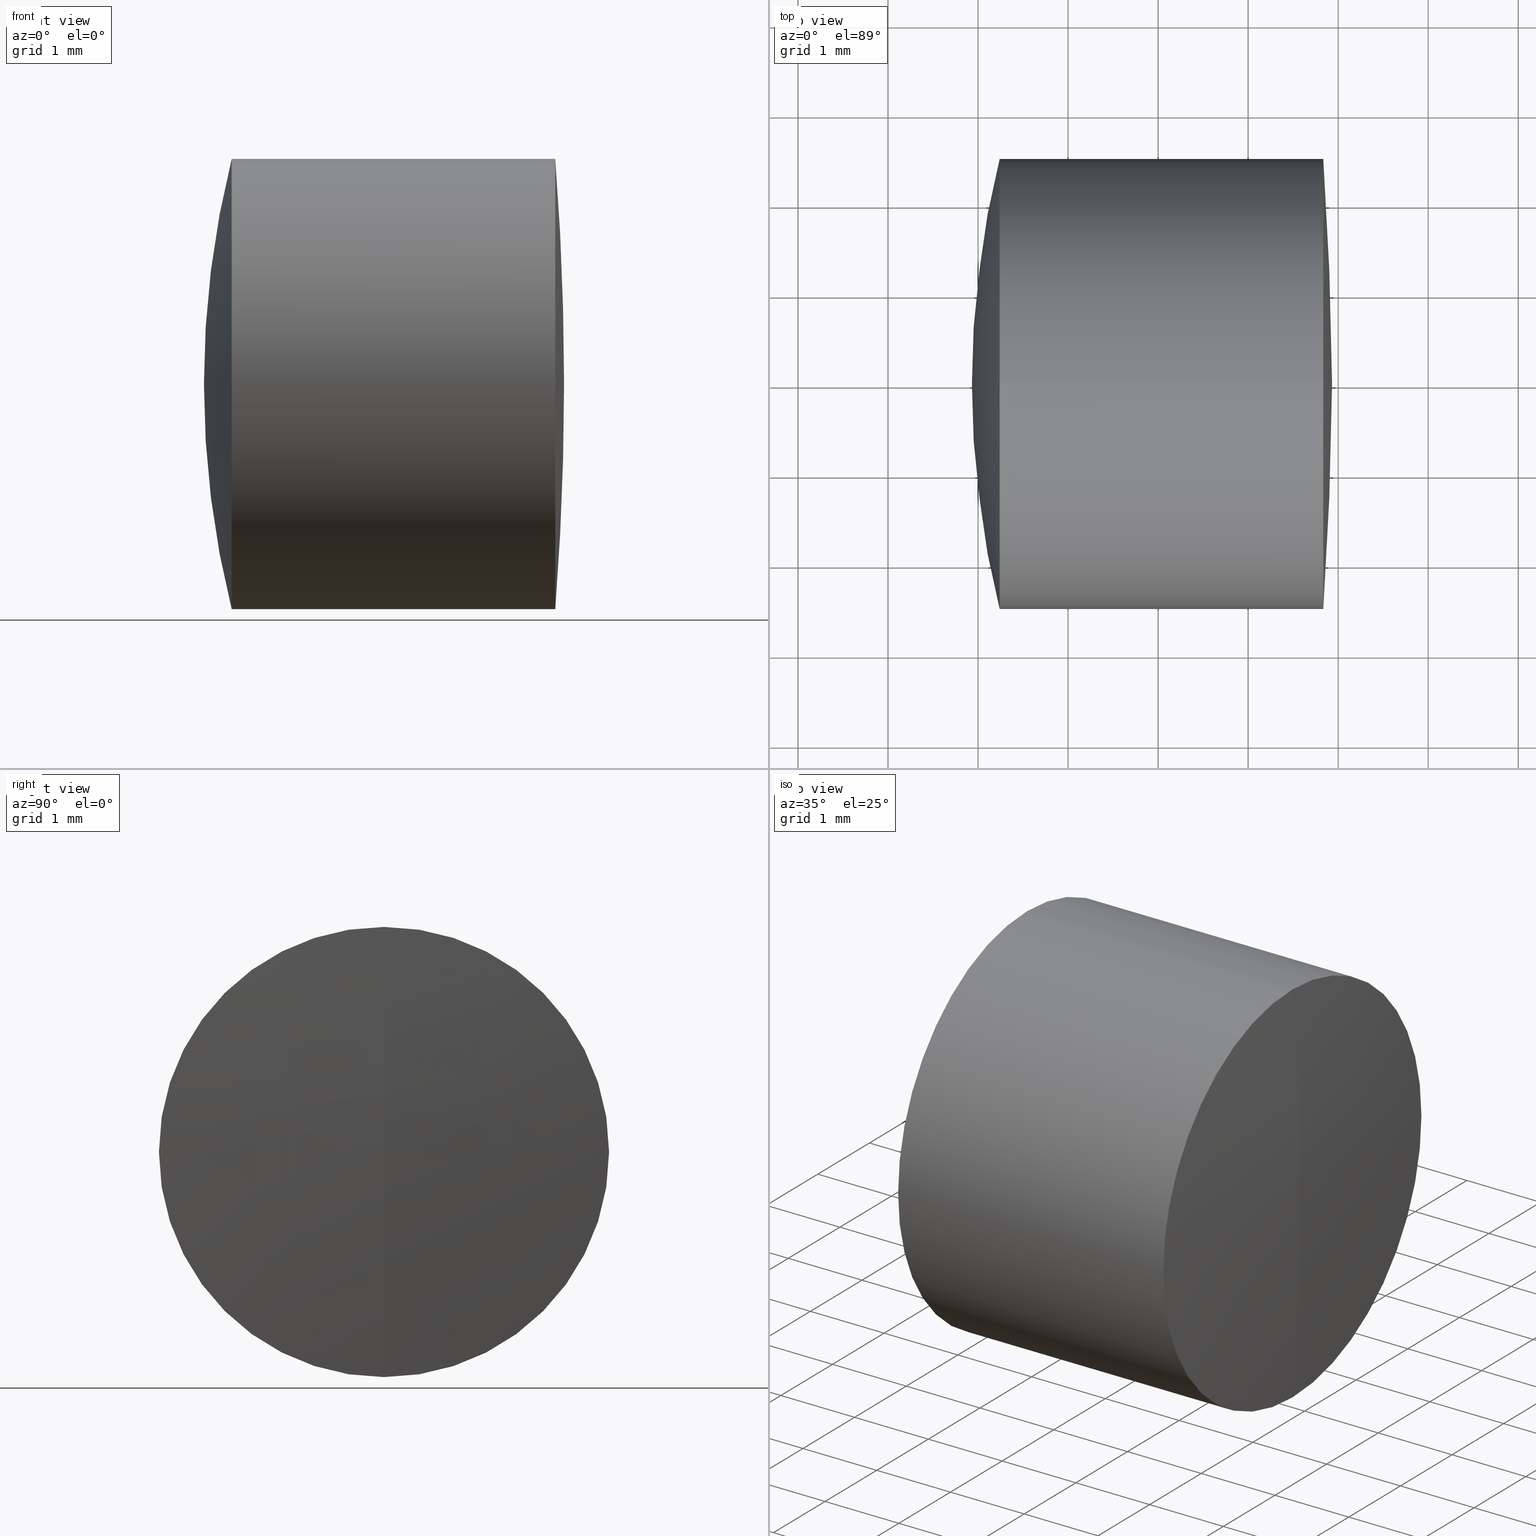
[diagram: canonical four-view strip — front | top / right | iso, engineering-drawing reading convention]
A machine part, canonical four-view strip (front | top / right | iso — engineering-drawing reading convention). The complete STEP part file that produces these views, byte-faithful:
ISO-10303-21;
HEADER;
FILE_DESCRIPTION (( 'STEP AP214' ),
    '1' );
FILE_NAME ('145102.STEP',
    '2019-05-28T06:45:25',
    ( 'user' ),
    ( '΢���й�' ),
    'SwSTEP 2.0',
    'SolidWorks 2016',
    '' );
FILE_SCHEMA (( 'AUTOMOTIVE_DESIGN' ));
ENDSEC;

DATA;
#1 = CARTESIAN_POINT ( 'NONE',  ( 124.5233095260452400, 0.0000000000000000000, 0.0000000000000000000 ) ) ;
#2 = SURFACE_STYLE_FILL_AREA ( #71 ) ;
#3 = EDGE_CURVE ( 'NONE', #38, #234, #325, .T. ) ;
#4 = EDGE_CURVE ( 'NONE', #38, #26, #173, .T. ) ;
#5 = FACE_OUTER_BOUND ( 'NONE', #280, .T. ) ;
#6 = LINE ( 'NONE', #86, #326 ) ;
#7 = DIRECTION ( 'NONE',  ( -0.0000000000000000000, 1.000000000000000000, 1.224646799147353200E-016 ) ) ;
#8 = CARTESIAN_POINT ( 'NONE',  ( 0.0000000000000000000, 0.0000000000000000000, 0.0000000000000000000 ) ) ;
#9 = EDGE_CURVE ( 'NONE', #234, #38, #161, .T. ) ;
#10 = CARTESIAN_POINT ( 'NONE',  ( 262.8091958044815900, 0.0000000000000000000, 0.0000000000000000000 ) ) ;
#11 =( GEOMETRIC_REPRESENTATION_CONTEXT ( 3 ) GLOBAL_UNCERTAINTY_ASSIGNED_CONTEXT ( ( #285 ) ) GLOBAL_UNIT_ASSIGNED_CONTEXT ( ( #103, #208, #91 ) ) REPRESENTATION_CONTEXT ( 'NONE', 'WORKASPACE' ) );
#12 = CARTESIAN_POINT ( 'NONE',  ( 261.2401522606448300, 0.0000000000000000000, 0.0000000000000000000 ) ) ;
#13 = VECTOR ( 'NONE', #293, 1000.000000000000000 ) ;
#14 = SPHERICAL_SURFACE ( 'NONE', #269, 7.599999999999996100 ) ;
#15 = ORIENTED_EDGE ( 'NONE', *, *, #80, .T. ) ;
#16 = AXIS2_PLACEMENT_3D ( 'NONE', #309, #136, #81 ) ;
#17 = DIRECTION ( 'NONE',  ( 0.0000000000000000000, 1.000000000000000000, 0.0000000000000000000 ) ) ;
#18 = PRODUCT_DEFINITION ( 'δ֪', '', #240, #259 ) ;
#19 = SPHERICAL_SURFACE ( 'NONE', #238, 32.09999999999994500 ) ;
#20 = CIRCLE ( 'NONE', #254, 2.500000000000001300 ) ;
#21 = CIRCLE ( 'NONE', #345, 10.30000000000001500 ) ;
#22 = CARTESIAN_POINT ( 'NONE',  ( 232.8321490580823100, 0.0000000000000000000, 0.0000000000000000000 ) ) ;
#23 = CARTESIAN_POINT ( 'NONE',  ( 262.8091958044815900, 0.0000000000000000000, 2.500000000000000000 ) ) ;
#24 = DIRECTION ( 'NONE',  ( 0.0000000000000000000, 0.0000000000000000000, -1.000000000000000000 ) ) ;
#25 = VERTEX_POINT ( 'NONE', #156 ) ;
#26 = VERTEX_POINT ( 'NONE', #187 ) ;
#27 = ADVANCED_FACE ( 'NONE', ( #253 ), #95, .F. ) ;
#28 = ORIENTED_EDGE ( 'NONE', *, *, #9, .F. ) ;
#29 = CIRCLE ( 'NONE', #302, 7.599999999999996100 ) ;
#30 = DIRECTION ( 'NONE',  ( 0.0000000000000000000, 0.0000000000000000000, 1.000000000000000000 ) ) ;
#31 = DIRECTION ( 'NONE',  ( 0.0000000000000000000, -1.000000000000000000, 0.0000000000000000000 ) ) ;
#32 = DIRECTION ( 'NONE',  ( 0.0000000000000000000, 0.0000000000000000000, 1.000000000000000000 ) ) ;
#33 = MECHANICAL_DESIGN_GEOMETRIC_PRESENTATION_REPRESENTATION (  '', ( #246 ), #11 ) ;
#34 = COLOUR_RGB ( '',1.000000000000000000, 1.000000000000000000, 1.000000000000000000 ) ;
#35 = AXIS2_PLACEMENT_3D ( 'NONE', #170, #233, #206 ) ;
#36 = DIRECTION ( 'NONE',  ( 0.0000000000000000000, 1.000000000000000000, 0.0000000000000000000 ) ) ;
#37 = CIRCLE ( 'NONE', #196, 2.500000000000000000 ) ;
#38 = VERTEX_POINT ( 'NONE', #176 ) ;
#39 = DIRECTION ( 'NONE',  ( 0.0000000000000000000, 0.0000000000000000000, 1.000000000000000000 ) ) ;
#40 = DIRECTION ( 'NONE',  ( -1.000000000000000000, -0.0000000000000000000, -0.0000000000000000000 ) ) ;
#41 = MECHANICAL_DESIGN_GEOMETRIC_PRESENTATION_REPRESENTATION (  '', ( #115 ), #76 ) ;
#42 = SPHERICAL_SURFACE ( 'NONE', #226, 10.30000000000001500 ) ;
#43 = SPHERICAL_SURFACE ( 'NONE', #197, 10.30000000000001500 ) ;
#44 = AXIS2_PLACEMENT_3D ( 'NONE', #1, #239, #243 ) ;
#45 = EDGE_LOOP ( 'NONE', ( #245, #153, #28 ) ) ;
#46 = FACE_OUTER_BOUND ( 'NONE', #266, .T. ) ;
#47 = EDGE_CURVE ( 'NONE', #152, #304, #321, .T. ) ;
#48 = FACE_OUTER_BOUND ( 'NONE', #268, .T. ) ;
#49 = PRODUCT_DEFINITION_SHAPE ( 'NONE', 'NONE',  #18 ) ;
#50 = EDGE_LOOP ( 'NONE', ( #174, #258, #70 ) ) ;
#51 = DIRECTION ( 'NONE',  ( 0.0000000000000000000, 0.0000000000000000000, 1.000000000000000000 ) ) ;
#52 = ADVANCED_FACE ( 'NONE', ( #48 ), #344, .T. ) ;
#53 = DIRECTION ( 'NONE',  ( 1.000000000000000000, 0.0000000000000000000, 0.0000000000000000000 ) ) ;
#54 = CIRCLE ( 'NONE', #157, 2.500000000000000000 ) ;
#55 = UNCERTAINTY_MEASURE_WITH_UNIT (LENGTH_MEASURE( 1.000000000000000100E-005 ), #90, 'distance_accuracy_value', 'NONE');
#56 = DIRECTION ( 'NONE',  ( -1.000000000000000000, -0.0000000000000000000, -0.0000000000000000000 ) ) ;
#57 = PRODUCT ( '145102', '145102', '', ( #209 ) ) ;
#58 = PRESENTATION_STYLE_ASSIGNMENT (( #255 ) ) ;
#59 = CIRCLE ( 'NONE', #307, 10.30000000000001500 ) ;
#60 = ORIENTED_EDGE ( 'NONE', *, *, #328, .F. ) ;
#61 = FACE_OUTER_BOUND ( 'NONE', #273, .T. ) ;
#62 = EDGE_LOOP ( 'NONE', ( #333, #64, #113, #262 ) ) ;
#63 = DIRECTION ( 'NONE',  ( 0.0000000000000000000, -1.224646799147353000E-016, 1.000000000000000000 ) ) ;
#64 = ORIENTED_EDGE ( 'NONE', *, *, #218, .T. ) ;
#65 = CARTESIAN_POINT ( 'NONE',  ( -0.5519199926577972300, 3.061616997868384100E-016, -2.500000000000000900 ) ) ;
#66 = ORIENTED_EDGE ( 'NONE', *, *, #4, .T. ) ;
#67 = CARTESIAN_POINT ( 'NONE',  ( 263.2321490580823700, 0.0000000000000000000, 4.653657836759939800E-016 ) ) ;
#68 = CARTESIAN_POINT ( 'NONE',  ( 232.8321490580823100, 0.0000000000000000000, 0.0000000000000000000 ) ) ;
#69 = ORIENTED_EDGE ( 'NONE', *, *, #343, .F. ) ;
#70 = ORIENTED_EDGE ( 'NONE', *, *, #242, .T. ) ;
#71 = FILL_AREA_STYLE ('',( #249 ) ) ;
#72 = AXIS2_PLACEMENT_3D ( 'NONE', #139, #337, #141 ) ;
#73 = CIRCLE ( 'NONE', #137, 7.599999999999996100 ) ;
#74 = EDGE_CURVE ( 'NONE', #304, #207, #313, .T. ) ;
#75 = CARTESIAN_POINT ( 'NONE',  ( -0.5519199926577972300, 0.0000000000000000000, 2.500000000000000900 ) ) ;
#76 =( GEOMETRIC_REPRESENTATION_CONTEXT ( 3 ) GLOBAL_UNCERTAINTY_ASSIGNED_CONTEXT ( ( #300 ) ) GLOBAL_UNIT_ASSIGNED_CONTEXT ( ( #149, #277, #278 ) ) REPRESENTATION_CONTEXT ( 'NONE', 'WORKASPACE' ) );
#77 = CARTESIAN_POINT ( 'NONE',  ( -0.5519199926577972300, 0.0000000000000000000, 0.0000000000000000000 ) ) ;
#78 = ORIENTED_EDGE ( 'NONE', *, *, #224, .F. ) ;
#79 = ADVANCED_FACE ( 'NONE', ( #256 ), #19, .T. ) ;
#80 = EDGE_CURVE ( 'NONE', #93, #201, #73, .T. ) ;
#81 = DIRECTION ( 'NONE',  ( 0.0000000000000000000, 0.0000000000000000000, 1.000000000000000000 ) ) ;
#82 = CIRCLE ( 'NONE', #72, 2.500000000000001300 ) ;
#83 = SPHERICAL_SURFACE ( 'NONE', #151, 7.599999999999996100 ) ;
#84 = SURFACE_SIDE_STYLE ('',( #2 ) ) ;
#85 = ORIENTED_EDGE ( 'NONE', *, *, #343, .T. ) ;
#86 = CARTESIAN_POINT ( 'NONE',  ( 124.5233095260452400, 3.061616997868383100E-016, -2.500000000000000000 ) ) ;
#87 = SURFACE_STYLE_USAGE ( .BOTH. , #84 ) ;
#88 = AXIS2_PLACEMENT_3D ( 'NONE', #77, #306, #179 ) ;
#89 = ORIENTED_EDGE ( 'NONE', *, *, #328, .T. ) ;
#90 =( LENGTH_UNIT ( ) NAMED_UNIT ( * ) SI_UNIT ( .MILLI., .METRE. ) );
#91 =( NAMED_UNIT ( * ) SI_UNIT ( $, .STERADIAN. ) SOLID_ANGLE_UNIT ( ) );
#92 =( NAMED_UNIT ( * ) PLANE_ANGLE_UNIT ( ) SI_UNIT ( $, .RADIAN. ) );
#93 = VERTEX_POINT ( 'NONE', #287 ) ;
#94 =( NAMED_UNIT ( * ) SI_UNIT ( $, .STERADIAN. ) SOLID_ANGLE_UNIT ( ) );
#95 = SPHERICAL_SURFACE ( 'NONE', #140, 7.599999999999996100 ) ;
#96 = SHAPE_DEFINITION_REPRESENTATION ( #49, #264 ) ;
#97 = CYLINDRICAL_SURFACE ( 'NONE', #102, 2.500000000000000000 ) ;
#98 = ADVANCED_FACE ( 'NONE', ( #5 ), #99, .T. ) ;
#99 = SPHERICAL_SURFACE ( 'NONE', #130, 32.09999999999994500 ) ;
#100 = ADVANCED_FACE ( 'NONE', ( #303 ), #83, .F. ) ;
#101 = ORIENTED_EDGE ( 'NONE', *, *, #3, .F. ) ;
#102 = AXIS2_PLACEMENT_3D ( 'NONE', #251, #105, #184 ) ;
#103 =( LENGTH_UNIT ( ) NAMED_UNIT ( * ) SI_UNIT ( .MILLI., .METRE. ) );
#104 = EDGE_LOOP ( 'NONE', ( #252, #168, #66, #120 ) ) ;
#105 = DIRECTION ( 'NONE',  ( -1.000000000000000000, -0.0000000000000000000, -0.0000000000000000000 ) ) ;
#106 = EDGE_CURVE ( 'NONE', #26, #201, #20, .T. ) ;
#107 = FACE_OUTER_BOUND ( 'NONE', #62, .T. ) ;
#108 = ORIENTED_EDGE ( 'NONE', *, *, #74, .T. ) ;
#109 = SURFACE_SIDE_STYLE ('',( #211 ) ) ;
#110 = ORIENTED_EDGE ( 'NONE', *, *, #47, .T. ) ;
#111 = CIRCLE ( 'NONE', #291, 32.09999999999994500 ) ;
#112 = SURFACE_STYLE_USAGE ( .BOTH. , #109 ) ;
#113 = ORIENTED_EDGE ( 'NONE', *, *, #106, .F. ) ;
#114 = APPLICATION_CONTEXT ( 'automotive_design' ) ;
#115 = STYLED_ITEM ( 'NONE', ( #190 ), #276 ) ;
#116 = ORIENTED_EDGE ( 'NONE', *, *, #222, .T. ) ;
#117 = ADVANCED_FACE ( 'NONE', ( #338 ), #43, .T. ) ;
#118 = FILL_AREA_STYLE_COLOUR ( '', #128 ) ;
#119 = SURFACE_STYLE_FILL_AREA ( #225 ) ;
#120 = ORIENTED_EDGE ( 'NONE', *, *, #222, .F. ) ;
#121 = CARTESIAN_POINT ( 'NONE',  ( 264.8346489604336400, 3.061616997868384100E-016, -2.500000000000000400 ) ) ;
#122 = MANIFOLD_SOLID_BREP ( '��ת3', #212 ) ;
#123 = ORIENTED_EDGE ( 'NONE', *, *, #224, .T. ) ;
#124 = FILL_AREA_STYLE ('',( #118 ) ) ;
#125 = DIRECTION ( 'NONE',  ( 0.0000000000000000000, 0.0000000000000000000, 1.000000000000000000 ) ) ;
#126 = CARTESIAN_POINT ( 'NONE',  ( 264.8346489604336400, 0.0000000000000000000, 0.0000000000000000000 ) ) ;
#127 = DIRECTION ( 'NONE',  ( 0.0000000000000000000, -1.224646799147353200E-016, 1.000000000000000000 ) ) ;
#128 = COLOUR_RGB ( '',1.000000000000000000, 1.000000000000000000, 1.000000000000000000 ) ;
#129 = CLOSED_SHELL ( 'NONE', ( #52, #183, #228, #117, #220, #297 ) ) ;
#130 = AXIS2_PLACEMENT_3D ( 'NONE', #22, #17, #178 ) ;
#131 = FACE_OUTER_BOUND ( 'NONE', #342, .T. ) ;
#132 = CARTESIAN_POINT ( 'NONE',  ( 255.6321490580823500, 0.0000000000000000000, 0.0000000000000000000 ) ) ;
#133 = ORIENTED_EDGE ( 'NONE', *, *, #159, .F. ) ;
#134 = DIRECTION ( 'NONE',  ( 0.0000000000000000000, 0.0000000000000000000, -1.000000000000000000 ) ) ;
#135 = MECHANICAL_DESIGN_GEOMETRIC_PRESENTATION_REPRESENTATION (  '', ( #327 ), #185 ) ;
#136 = DIRECTION ( 'NONE',  ( -1.000000000000000000, -0.0000000000000000000, -0.0000000000000000000 ) ) ;
#137 = AXIS2_PLACEMENT_3D ( 'NONE', #221, #7, #127 ) ;
#138 = DIRECTION ( 'NONE',  ( 0.0000000000000000000, 0.0000000000000000000, -1.000000000000000000 ) ) ;
#139 = CARTESIAN_POINT ( 'NONE',  ( 262.8091958044815900, 0.0000000000000000000, 0.0000000000000000000 ) ) ;
#140 = AXIS2_PLACEMENT_3D ( 'NONE', #146, #288, #194 ) ;
#141 = DIRECTION ( 'NONE',  ( 0.0000000000000000000, 0.0000000000000000000, 1.000000000000000000 ) ) ;
#142 = AXIS2_PLACEMENT_3D ( 'NONE', #347, #31, #24 ) ;
#143 = LINE ( 'NONE', #292, #13 ) ;
#144 = DIRECTION ( 'NONE',  ( -1.000000000000000000, -0.0000000000000000000, -0.0000000000000000000 ) ) ;
#145 = DIRECTION ( 'NONE',  ( 0.0000000000000000000, 0.0000000000000000000, 1.000000000000000000 ) ) ;
#146 = CARTESIAN_POINT ( 'NONE',  ( 255.6321490580823500, 0.0000000000000000000, 0.0000000000000000000 ) ) ;
#147 = CIRCLE ( 'NONE', #286, 32.09999999999994500 ) ;
#148 = EDGE_CURVE ( 'NONE', #155, #315, #54, .T. ) ;
#149 =( LENGTH_UNIT ( ) NAMED_UNIT ( * ) SI_UNIT ( .MILLI., .METRE. ) );
#150 = VECTOR ( 'NONE', #272, 1000.000000000000000 ) ;
#151 = AXIS2_PLACEMENT_3D ( 'NONE', #198, #36, #274 ) ;
#152 = VERTEX_POINT ( 'NONE', #67 ) ;
#153 = ORIENTED_EDGE ( 'NONE', *, *, #159, .T. ) ;
#154 = APPLICATION_PROTOCOL_DEFINITION ( 'draft international standard', 'automotive_design', 1998, #114 ) ;
#155 = VERTEX_POINT ( 'NONE', #231 ) ;
#156 = CARTESIAN_POINT ( 'NONE',  ( 260.9321490580822500, 0.0000000000000000000, -6.102235094014472000E-016 ) ) ;
#157 = AXIS2_PLACEMENT_3D ( 'NONE', #12, #236, #30 ) ;
#158 = DIRECTION ( 'NONE',  ( -0.0000000000000000000, -1.000000000000000000, -0.0000000000000000000 ) ) ;
#159 = EDGE_CURVE ( 'NONE', #227, #38, #147, .T. ) ;
#160 = CARTESIAN_POINT ( 'NONE',  ( 271.2321490580823100, 0.0000000000000000000, 2.046959215944070700E-017 ) ) ;
#161 = CIRCLE ( 'NONE', #310, 2.500000000000000400 ) ;
#162 = DIRECTION ( 'NONE',  ( 0.0000000000000000000, 0.0000000000000000000, 1.000000000000000000 ) ) ;
#163 = DIRECTION ( 'NONE',  ( -1.000000000000000000, -0.0000000000000000000, -0.0000000000000000000 ) ) ;
#164 = DIRECTION ( 'NONE',  ( 0.0000000000000000000, -1.000000000000000000, 0.0000000000000000000 ) ) ;
#165 = EDGE_LOOP ( 'NONE', ( #340, #320, #317 ) ) ;
#166 = AXIS2_PLACEMENT_3D ( 'NONE', #172, #144, #312 ) ;
#167 = CYLINDRICAL_SURFACE ( 'NONE', #166, 2.500000000000000900 ) ;
#168 = ORIENTED_EDGE ( 'NONE', *, *, #9, .T. ) ;
#169 = EDGE_CURVE ( 'NONE', #207, #315, #143, .T. ) ;
#170 = CARTESIAN_POINT ( 'NONE',  ( 264.8346489604336400, 0.0000000000000000000, 0.0000000000000000000 ) ) ;
#171 = PRESENTATION_LAYER_ASSIGNMENT (  '', '', ( #327 ) ) ;
#172 = CARTESIAN_POINT ( 'NONE',  ( -0.5519199926577972300, 0.0000000000000000000, 0.0000000000000000000 ) ) ;
#173 = LINE ( 'NONE', #75, #150 ) ;
#174 = ORIENTED_EDGE ( 'NONE', *, *, #289, .F. ) ;
#175 = PRESENTATION_STYLE_ASSIGNMENT (( #87 ) ) ;
#176 = CARTESIAN_POINT ( 'NONE',  ( 264.8346489604336400, 0.0000000000000000000, 2.500000000000000400 ) ) ;
#177 = PRESENTATION_LAYER_ASSIGNMENT (  '', '', ( #246 ) ) ;
#178 = DIRECTION ( 'NONE',  ( 0.0000000000000000000, 0.0000000000000000000, 1.000000000000000000 ) ) ;
#179 = DIRECTION ( 'NONE',  ( 0.0000000000000000000, 0.0000000000000000000, 1.000000000000000000 ) ) ;
#180 = ORIENTED_EDGE ( 'NONE', *, *, #289, .T. ) ;
#181 = ADVANCED_FACE ( 'NONE', ( #334 ), #167, .T. ) ;
#182 = DIRECTION ( 'NONE',  ( 0.0000000000000000000, 1.000000000000000000, 0.0000000000000000000 ) ) ;
#183 = ADVANCED_FACE ( 'NONE', ( #186 ), #318, .T. ) ;
#184 = DIRECTION ( 'NONE',  ( 0.0000000000000000000, 0.0000000000000000000, 1.000000000000000000 ) ) ;
#185 =( GEOMETRIC_REPRESENTATION_CONTEXT ( 3 ) GLOBAL_UNCERTAINTY_ASSIGNED_CONTEXT ( ( #55 ) ) GLOBAL_UNIT_ASSIGNED_CONTEXT ( ( #90, #265, #94 ) ) REPRESENTATION_CONTEXT ( 'NONE', 'WORKASPACE' ) );
#186 = FACE_OUTER_BOUND ( 'NONE', #282, .T. ) ;
#187 = CARTESIAN_POINT ( 'NONE',  ( 262.8091958044815900, 0.0000000000000000000, 2.500000000000001300 ) ) ;
#188 = CARTESIAN_POINT ( 'NONE',  ( 232.8321490580823100, 0.0000000000000000000, 0.0000000000000000000 ) ) ;
#189 = DIRECTION ( 'NONE',  ( 0.0000000000000000000, -1.000000000000000000, -1.224646799147353200E-016 ) ) ;
#190 = PRESENTATION_STYLE_ASSIGNMENT (( #112 ) ) ;
#191 = ORIENTED_EDGE ( 'NONE', *, *, #330, .F. ) ;
#192 = DIRECTION ( 'NONE',  ( 0.0000000000000000000, 1.000000000000000000, 0.0000000000000000000 ) ) ;
#193 = AXIS2_PLACEMENT_3D ( 'NONE', #214, #213, #216 ) ;
#194 = DIRECTION ( 'NONE',  ( 0.0000000000000000000, 0.0000000000000000000, 1.000000000000000000 ) ) ;
#195 = ORIENTED_EDGE ( 'NONE', *, *, #74, .F. ) ;
#196 = AXIS2_PLACEMENT_3D ( 'NONE', #204, #229, #331 ) ;
#197 = AXIS2_PLACEMENT_3D ( 'NONE', #160, #158, #203 ) ;
#198 = CARTESIAN_POINT ( 'NONE',  ( 255.6321490580823500, 0.0000000000000000000, 0.0000000000000000000 ) ) ;
#199 = UNCERTAINTY_MEASURE_WITH_UNIT (LENGTH_MEASURE( 1.000000000000000100E-005 ), #316, 'distance_accuracy_value', 'NONE');
#200 = FILL_AREA_STYLE_COLOUR ( '', #34 ) ;
#201 = VERTEX_POINT ( 'NONE', #250 ) ;
#202 = AXIS2_PLACEMENT_3D ( 'NONE', #132, #192, #162 ) ;
#203 = DIRECTION ( 'NONE',  ( 0.0000000000000000000, 0.0000000000000000000, -1.000000000000000000 ) ) ;
#204 = CARTESIAN_POINT ( 'NONE',  ( 262.8091958044815900, 0.0000000000000000000, 0.0000000000000000000 ) ) ;
#205 = PRODUCT_RELATED_PRODUCT_CATEGORY ( 'part', '', ( #57 ) ) ;
#206 = DIRECTION ( 'NONE',  ( 0.0000000000000000000, 0.0000000000000000000, 1.000000000000000000 ) ) ;
#207 = VERTEX_POINT ( 'NONE', #23 ) ;
#208 =( NAMED_UNIT ( * ) PLANE_ANGLE_UNIT ( ) SI_UNIT ( $, .RADIAN. ) );
#209 = PRODUCT_CONTEXT ( 'NONE', #114, 'mechanical' ) ;
#210 = DIRECTION ( 'NONE',  ( 0.0000000000000000000, -1.000000000000000000, 0.0000000000000000000 ) ) ;
#211 = SURFACE_STYLE_FILL_AREA ( #124 ) ;
#212 = CLOSED_SHELL ( 'NONE', ( #98, #215, #100, #27, #181, #79 ) ) ;
#213 = DIRECTION ( 'NONE',  ( -0.0000000000000000000, 1.000000000000000000, 1.224646799147353200E-016 ) ) ;
#214 = CARTESIAN_POINT ( 'NONE',  ( 255.6321490580823500, 0.0000000000000000000, 0.0000000000000000000 ) ) ;
#215 = ADVANCED_FACE ( 'NONE', ( #107 ), #323, .T. ) ;
#216 = DIRECTION ( 'NONE',  ( 0.0000000000000000000, -1.224646799147353200E-016, 1.000000000000000000 ) ) ;
#217 =( NAMED_UNIT ( * ) SI_UNIT ( $, .STERADIAN. ) SOLID_ANGLE_UNIT ( ) );
#218 = EDGE_CURVE ( 'NONE', #234, #201, #257, .T. ) ;
#219 = DIRECTION ( 'NONE',  ( -0.0000000000000000000, -1.000000000000000000, -0.0000000000000000000 ) ) ;
#220 = ADVANCED_FACE ( 'NONE', ( #61 ), #97, .T. ) ;
#221 = CARTESIAN_POINT ( 'NONE',  ( 255.6321490580823500, 0.0000000000000000000, 0.0000000000000000000 ) ) ;
#222 = EDGE_CURVE ( 'NONE', #201, #26, #82, .T. ) ;
#223 = CARTESIAN_POINT ( 'NONE',  ( 264.9321490580822500, 0.0000000000000000000, 1.965558112631498300E-015 ) ) ;
#224 = EDGE_CURVE ( 'NONE', #152, #207, #29, .T. ) ;
#225 = FILL_AREA_STYLE ('',( #200 ) ) ;
#226 = AXIS2_PLACEMENT_3D ( 'NONE', #314, #219, #138 ) ;
#227 = VERTEX_POINT ( 'NONE', #223 ) ;
#228 = ADVANCED_FACE ( 'NONE', ( #131 ), #42, .T. ) ;
#229 = DIRECTION ( 'NONE',  ( -1.000000000000000000, -0.0000000000000000000, -0.0000000000000000000 ) ) ;
#230 = DIRECTION ( 'NONE',  ( 0.0000000000000000000, 0.0000000000000000000, 1.000000000000000000 ) ) ;
#231 = CARTESIAN_POINT ( 'NONE',  ( 261.2401522606448300, 0.0000000000000000000, -2.500000000000001300 ) ) ;
#232 = CARTESIAN_POINT ( 'NONE',  ( 271.2321490580823100, 0.0000000000000000000, 2.046959215944070700E-017 ) ) ;
#233 = DIRECTION ( 'NONE',  ( -1.000000000000000000, -0.0000000000000000000, -0.0000000000000000000 ) ) ;
#234 = VERTEX_POINT ( 'NONE', #121 ) ;
#235 = CARTESIAN_POINT ( 'NONE',  ( 232.8321490580823100, 0.0000000000000000000, 0.0000000000000000000 ) ) ;
#236 = DIRECTION ( 'NONE',  ( -1.000000000000000000, -0.0000000000000000000, -0.0000000000000000000 ) ) ;
#237 = ORIENTED_EDGE ( 'NONE', *, *, #271, .F. ) ;
#238 = AXIS2_PLACEMENT_3D ( 'NONE', #188, #182, #32 ) ;
#239 = DIRECTION ( 'NONE',  ( -1.000000000000000000, -0.0000000000000000000, -0.0000000000000000000 ) ) ;
#240 = PRODUCT_DEFINITION_FORMATION_WITH_SPECIFIED_SOURCE ( '�κ�', '', #57, .NOT_KNOWN. ) ;
#241 = ORIENTED_EDGE ( 'NONE', *, *, #47, .F. ) ;
#242 = EDGE_CURVE ( 'NONE', #155, #25, #59, .T. ) ;
#243 = DIRECTION ( 'NONE',  ( 0.0000000000000000000, 0.0000000000000000000, 1.000000000000000000 ) ) ;
#244 = VECTOR ( 'NONE', #260, 1000.000000000000000 ) ;
#245 = ORIENTED_EDGE ( 'NONE', *, *, #299, .F. ) ;
#246 = STYLED_ITEM ( 'NONE', ( #58 ), #122 ) ;
#247 = ORIENTED_EDGE ( 'NONE', *, *, #148, .F. ) ;
#248 = SURFACE_SIDE_STYLE ('',( #119 ) ) ;
#249 = FILL_AREA_STYLE_COLOUR ( '', #308 ) ;
#250 = CARTESIAN_POINT ( 'NONE',  ( 262.8091958044815900, 3.061616997868385100E-016, -2.500000000000001300 ) ) ;
#251 = CARTESIAN_POINT ( 'NONE',  ( 124.5233095260452400, 0.0000000000000000000, 0.0000000000000000000 ) ) ;
#252 = ORIENTED_EDGE ( 'NONE', *, *, #218, .F. ) ;
#253 = FACE_OUTER_BOUND ( 'NONE', #165, .T. ) ;
#254 = AXIS2_PLACEMENT_3D ( 'NONE', #263, #56, #230 ) ;
#255 = SURFACE_STYLE_USAGE ( .BOTH. , #248 ) ;
#256 = FACE_OUTER_BOUND ( 'NONE', #45, .T. ) ;
#257 = LINE ( 'NONE', #65, #244 ) ;
#258 = ORIENTED_EDGE ( 'NONE', *, *, #271, .T. ) ;
#259 = PRODUCT_DEFINITION_CONTEXT ( 'detailed design', #339, 'design' ) ;
#260 = DIRECTION ( 'NONE',  ( -1.000000000000000000, -0.0000000000000000000, -0.0000000000000000000 ) ) ;
#261 = CARTESIAN_POINT ( 'NONE',  ( 261.2401522606448300, -3.061616997868385100E-016, 2.500000000000001300 ) ) ;
#262 = ORIENTED_EDGE ( 'NONE', *, *, #4, .F. ) ;
#263 = CARTESIAN_POINT ( 'NONE',  ( 262.8091958044815900, 0.0000000000000000000, 0.0000000000000000000 ) ) ;
#264 = ADVANCED_BREP_SHAPE_REPRESENTATION ( '145102', ( #276, #122, #332 ), #336 ) ;
#265 =( NAMED_UNIT ( * ) PLANE_ANGLE_UNIT ( ) SI_UNIT ( $, .RADIAN. ) );
#266 = EDGE_LOOP ( 'NONE', ( #241, #123, #195 ) ) ;
#267 = APPLICATION_PROTOCOL_DEFINITION ( 'draft international standard', 'automotive_design', 1998, #339 ) ;
#268 = EDGE_LOOP ( 'NONE', ( #78, #110, #69 ) ) ;
#269 = AXIS2_PLACEMENT_3D ( 'NONE', #295, #281, #294 ) ;
#270 = DIRECTION ( 'NONE',  ( -0.0000000000000000000, 1.000000000000000000, 1.224646799147353200E-016 ) ) ;
#271 = EDGE_CURVE ( 'NONE', #315, #155, #279, .T. ) ;
#272 = DIRECTION ( 'NONE',  ( -1.000000000000000000, -0.0000000000000000000, -0.0000000000000000000 ) ) ;
#273 = EDGE_LOOP ( 'NONE', ( #60, #108, #322, #247 ) ) ;
#274 = DIRECTION ( 'NONE',  ( 0.0000000000000000000, 0.0000000000000000000, 1.000000000000000000 ) ) ;
#275 = DIRECTION ( 'NONE',  ( 0.0000000000000000000, 1.224646799147353200E-016, -1.000000000000000000 ) ) ;
#276 = MANIFOLD_SOLID_BREP ( '��ת1', #129 ) ;
#277 =( NAMED_UNIT ( * ) PLANE_ANGLE_UNIT ( ) SI_UNIT ( $, .RADIAN. ) );
#278 =( NAMED_UNIT ( * ) SI_UNIT ( $, .STERADIAN. ) SOLID_ANGLE_UNIT ( ) );
#279 = CIRCLE ( 'NONE', #16, 2.500000000000000000 ) ;
#280 = EDGE_LOOP ( 'NONE', ( #133, #290, #101 ) ) ;
#281 = DIRECTION ( 'NONE',  ( 0.0000000000000000000, 1.000000000000000000, 0.0000000000000000000 ) ) ;
#282 = EDGE_LOOP ( 'NONE', ( #85, #89, #237, #324 ) ) ;
#283 = CARTESIAN_POINT ( 'NONE',  ( 262.8091958044815900, 3.061616997868383100E-016, -2.500000000000000000 ) ) ;
#284 = PRESENTATION_LAYER_ASSIGNMENT (  '', '', ( #115 ) ) ;
#285 = UNCERTAINTY_MEASURE_WITH_UNIT (LENGTH_MEASURE( 1.000000000000000100E-005 ), #103, 'distance_accuracy_value', 'NONE');
#286 = AXIS2_PLACEMENT_3D ( 'NONE', #235, #164, #296 ) ;
#287 = CARTESIAN_POINT ( 'NONE',  ( 263.2321490580823700, 0.0000000000000000000, 4.653657836759939800E-016 ) ) ;
#288 = DIRECTION ( 'NONE',  ( 0.0000000000000000000, 1.000000000000000000, 0.0000000000000000000 ) ) ;
#289 = EDGE_CURVE ( 'NONE', #315, #25, #21, .T. ) ;
#290 = ORIENTED_EDGE ( 'NONE', *, *, #299, .T. ) ;
#291 = AXIS2_PLACEMENT_3D ( 'NONE', #68, #270, #63 ) ;
#292 = CARTESIAN_POINT ( 'NONE',  ( 124.5233095260452400, 0.0000000000000000000, 2.500000000000000000 ) ) ;
#293 = DIRECTION ( 'NONE',  ( -1.000000000000000000, -0.0000000000000000000, -0.0000000000000000000 ) ) ;
#294 = DIRECTION ( 'NONE',  ( 0.0000000000000000000, 0.0000000000000000000, 1.000000000000000000 ) ) ;
#295 = CARTESIAN_POINT ( 'NONE',  ( 255.6321490580823500, 0.0000000000000000000, 0.0000000000000000000 ) ) ;
#296 = DIRECTION ( 'NONE',  ( 0.0000000000000000000, 0.0000000000000000000, -1.000000000000000000 ) ) ;
#297 = ADVANCED_FACE ( 'NONE', ( #46 ), #14, .T. ) ;
#298 = DIRECTION ( 'NONE',  ( 0.0000000000000000000, 1.000000000000000000, -0.0000000000000000000 ) ) ;
#299 = EDGE_CURVE ( 'NONE', #227, #234, #111, .T. ) ;
#300 = UNCERTAINTY_MEASURE_WITH_UNIT (LENGTH_MEASURE( 1.000000000000000100E-005 ), #149, 'distance_accuracy_value', 'NONE');
#301 = CARTESIAN_POINT ( 'NONE',  ( 271.2321490580823100, 0.0000000000000000000, 2.046959215944070700E-017 ) ) ;
#302 = AXIS2_PLACEMENT_3D ( 'NONE', #305, #210, #134 ) ;
#303 = FACE_OUTER_BOUND ( 'NONE', #346, .T. ) ;
#304 = VERTEX_POINT ( 'NONE', #283 ) ;
#305 = CARTESIAN_POINT ( 'NONE',  ( 255.6321490580823500, 0.0000000000000000000, 0.0000000000000000000 ) ) ;
#306 = DIRECTION ( 'NONE',  ( -1.000000000000000000, -0.0000000000000000000, -0.0000000000000000000 ) ) ;
#307 = AXIS2_PLACEMENT_3D ( 'NONE', #301, #298, #145 ) ;
#308 = COLOUR_RGB ( '',1.000000000000000000, 1.000000000000000000, 1.000000000000000000 ) ;
#309 = CARTESIAN_POINT ( 'NONE',  ( 261.2401522606448300, 0.0000000000000000000, 0.0000000000000000000 ) ) ;
#310 = AXIS2_PLACEMENT_3D ( 'NONE', #126, #163, #125 ) ;
#311 = DIRECTION ( 'NONE',  ( -1.000000000000000000, -0.0000000000000000000, -0.0000000000000000000 ) ) ;
#312 = DIRECTION ( 'NONE',  ( 0.0000000000000000000, 0.0000000000000000000, 1.000000000000000000 ) ) ;
#313 = CIRCLE ( 'NONE', #341, 2.500000000000000000 ) ;
#314 = CARTESIAN_POINT ( 'NONE',  ( 271.2321490580823100, 0.0000000000000000000, 2.046959215944070700E-017 ) ) ;
#315 = VERTEX_POINT ( 'NONE', #261 ) ;
#316 =( LENGTH_UNIT ( ) NAMED_UNIT ( * ) SI_UNIT ( .MILLI., .METRE. ) );
#317 = ORIENTED_EDGE ( 'NONE', *, *, #106, .T. ) ;
#318 = CYLINDRICAL_SURFACE ( 'NONE', #44, 2.500000000000000000 ) ;
#319 = CIRCLE ( 'NONE', #142, 7.599999999999996100 ) ;
#320 = ORIENTED_EDGE ( 'NONE', *, *, #330, .T. ) ;
#321 = CIRCLE ( 'NONE', #193, 7.599999999999996100 ) ;
#322 = ORIENTED_EDGE ( 'NONE', *, *, #169, .T. ) ;
#323 = CYLINDRICAL_SURFACE ( 'NONE', #88, 2.500000000000000900 ) ;
#324 = ORIENTED_EDGE ( 'NONE', *, *, #169, .F. ) ;
#325 = CIRCLE ( 'NONE', #35, 2.500000000000000400 ) ;
#326 = VECTOR ( 'NONE', #311, 1000.000000000000000 ) ;
#327 = STYLED_ITEM ( 'NONE', ( #175 ), #264 ) ;
#328 = EDGE_CURVE ( 'NONE', #304, #155, #6, .T. ) ;
#329 = ORIENTED_EDGE ( 'NONE', *, *, #148, .T. ) ;
#330 = EDGE_CURVE ( 'NONE', #93, #26, #319, .T. ) ;
#331 = DIRECTION ( 'NONE',  ( 0.0000000000000000000, 0.0000000000000000000, 1.000000000000000000 ) ) ;
#332 = AXIS2_PLACEMENT_3D ( 'NONE', #8, #51, #53 ) ;
#333 = ORIENTED_EDGE ( 'NONE', *, *, #3, .T. ) ;
#334 = FACE_OUTER_BOUND ( 'NONE', #104, .T. ) ;
#335 = ORIENTED_EDGE ( 'NONE', *, *, #242, .F. ) ;
#336 =( GEOMETRIC_REPRESENTATION_CONTEXT ( 3 ) GLOBAL_UNCERTAINTY_ASSIGNED_CONTEXT ( ( #199 ) ) GLOBAL_UNIT_ASSIGNED_CONTEXT ( ( #316, #92, #217 ) ) REPRESENTATION_CONTEXT ( 'NONE', 'WORKASPACE' ) );
#337 = DIRECTION ( 'NONE',  ( -1.000000000000000000, -0.0000000000000000000, -0.0000000000000000000 ) ) ;
#338 = FACE_OUTER_BOUND ( 'NONE', #50, .T. ) ;
#339 = APPLICATION_CONTEXT ( 'automotive_design' ) ;
#340 = ORIENTED_EDGE ( 'NONE', *, *, #80, .F. ) ;
#341 = AXIS2_PLACEMENT_3D ( 'NONE', #10, #40, #39 ) ;
#342 = EDGE_LOOP ( 'NONE', ( #329, #180, #335 ) ) ;
#343 = EDGE_CURVE ( 'NONE', #207, #304, #37, .T. ) ;
#344 = SPHERICAL_SURFACE ( 'NONE', #202, 7.599999999999996100 ) ;
#345 = AXIS2_PLACEMENT_3D ( 'NONE', #232, #189, #275 ) ;
#346 = EDGE_LOOP ( 'NONE', ( #191, #15, #116 ) ) ;
#347 = CARTESIAN_POINT ( 'NONE',  ( 255.6321490580823500, 0.0000000000000000000, 0.0000000000000000000 ) ) ;
ENDSEC;
END-ISO-10303-21;
